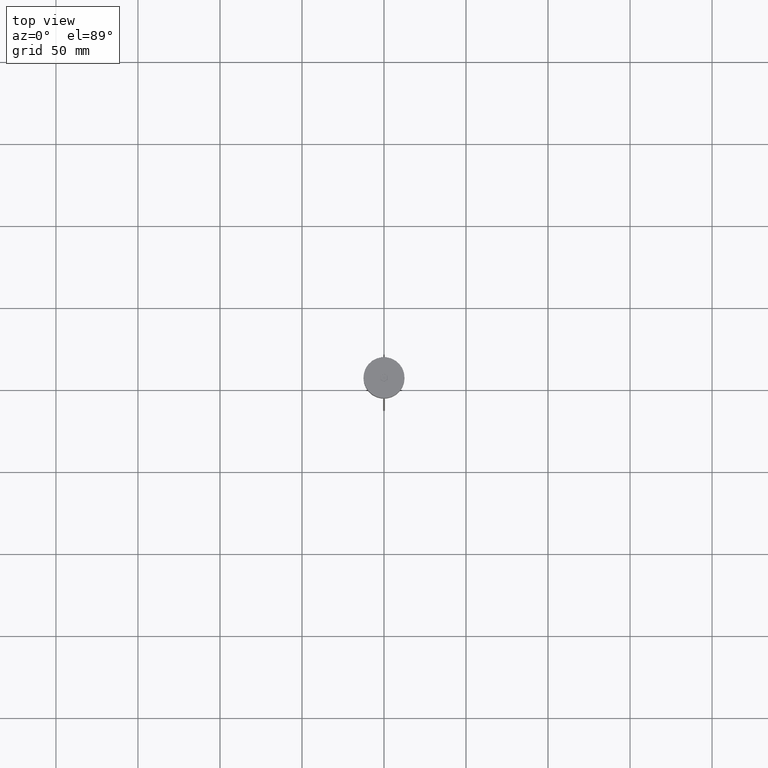
[diagram: clean part render]
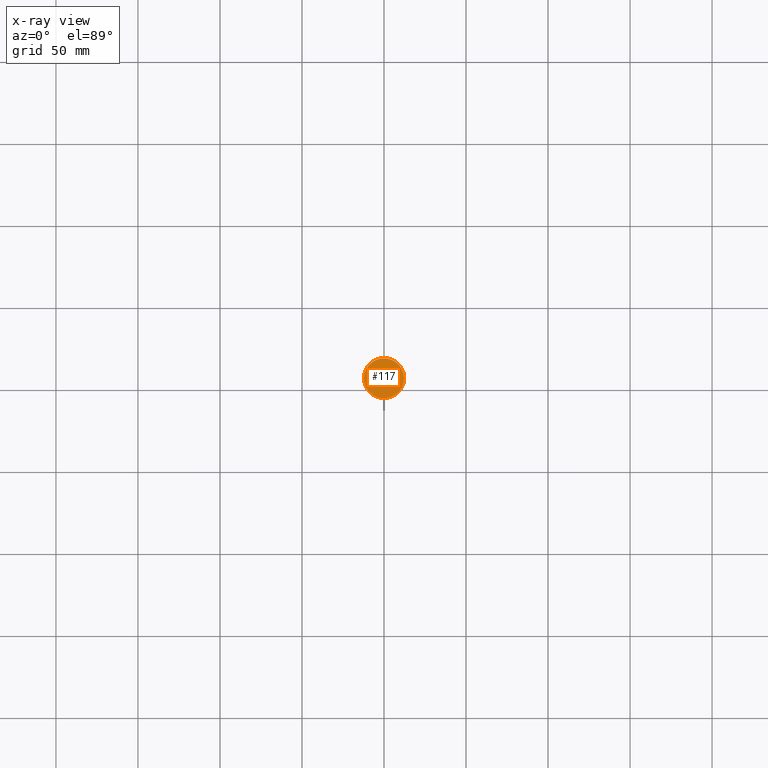
[diagram: x-ray — body ghosted, one internal face saturated and labeled with its STEP entity id]
A machine part, top view, then the same camera in x-ray: the body is ghosted and one INTERNAL B-rep face — a face not visible from any outside direction — is saturated and labeled: STEP entity #117.
In plain terms, the highlighted planar face has unit normal (0, 0, -1).
Its self-contained STEP definition (entity closure, byte-faithful):
#83 = ORIENTED_EDGE ( 'NONE', *, *, #530, .T. ) ;
#117 = ADVANCED_FACE ( 'NONE', ( #1869 ), #1861, .F. ) ;
#294 = ORIENTED_EDGE ( 'NONE', *, *, #1882, .T. ) ;
#346 = CIRCLE ( 'NONE', #785, 12.20000000000000639 ) ;
#420 = CARTESIAN_POINT ( 'NONE',  ( -12.20000000000000639, 0.000000000000000000, -20.49999999999999645 ) ) ;
#422 = DIRECTION ( 'NONE',  ( 0.000000000000000000, 0.000000000000000000, -1.000000000000000000 ) ) ;
#429 = CARTESIAN_POINT ( 'NONE',  ( 0.000000000000000000, 0.000000000000000000, -20.49999999999999645 ) ) ;
#530 = EDGE_CURVE ( 'NONE', #1930, #607, #1474, .T. ) ;
#573 = AXIS2_PLACEMENT_3D ( 'NONE', #2010, #1698, #1087 ) ;
#583 = CARTESIAN_POINT ( 'NONE',  ( 12.20000000000000639, 1.512438796946981880E-15, -20.49999999999999645 ) ) ;
#607 = VERTEX_POINT ( 'NONE', #420 ) ;
#785 = AXIS2_PLACEMENT_3D ( 'NONE', #429, #1877, #1231 ) ;
#1066 = CARTESIAN_POINT ( 'NONE',  ( 0.000000000000000000, 0.000000000000000000, -20.49999999999999645 ) ) ;
#1087 = DIRECTION ( 'NONE',  ( -1.000000000000000000, 0.000000000000000000, 0.000000000000000000 ) ) ;
#1231 = DIRECTION ( 'NONE',  ( -1.000000000000000000, 0.000000000000000000, 0.000000000000000000 ) ) ;
#1474 = CIRCLE ( 'NONE', #573, 12.20000000000000639 ) ;
#1682 = AXIS2_PLACEMENT_3D ( 'NONE', #1066, #422, #1881 ) ;
#1698 = DIRECTION ( 'NONE',  ( -0.000000000000000000, -0.000000000000000000, 1.000000000000000000 ) ) ;
#1861 = PLANE ( 'NONE',  #1682 ) ;
#1869 = FACE_OUTER_BOUND ( 'NONE', #1941, .T. ) ;
#1877 = DIRECTION ( 'NONE',  ( -0.000000000000000000, -0.000000000000000000, 1.000000000000000000 ) ) ;
#1881 = DIRECTION ( 'NONE',  ( -1.000000000000000000, 0.000000000000000000, -0.000000000000000000 ) ) ;
#1882 = EDGE_CURVE ( 'NONE', #607, #1930, #346, .T. ) ;
#1930 = VERTEX_POINT ( 'NONE', #583 ) ;
#1941 = EDGE_LOOP ( 'NONE', ( #294, #83 ) ) ;
#2010 = CARTESIAN_POINT ( 'NONE',  ( 0.000000000000000000, 0.000000000000000000, -20.49999999999999645 ) ) ;